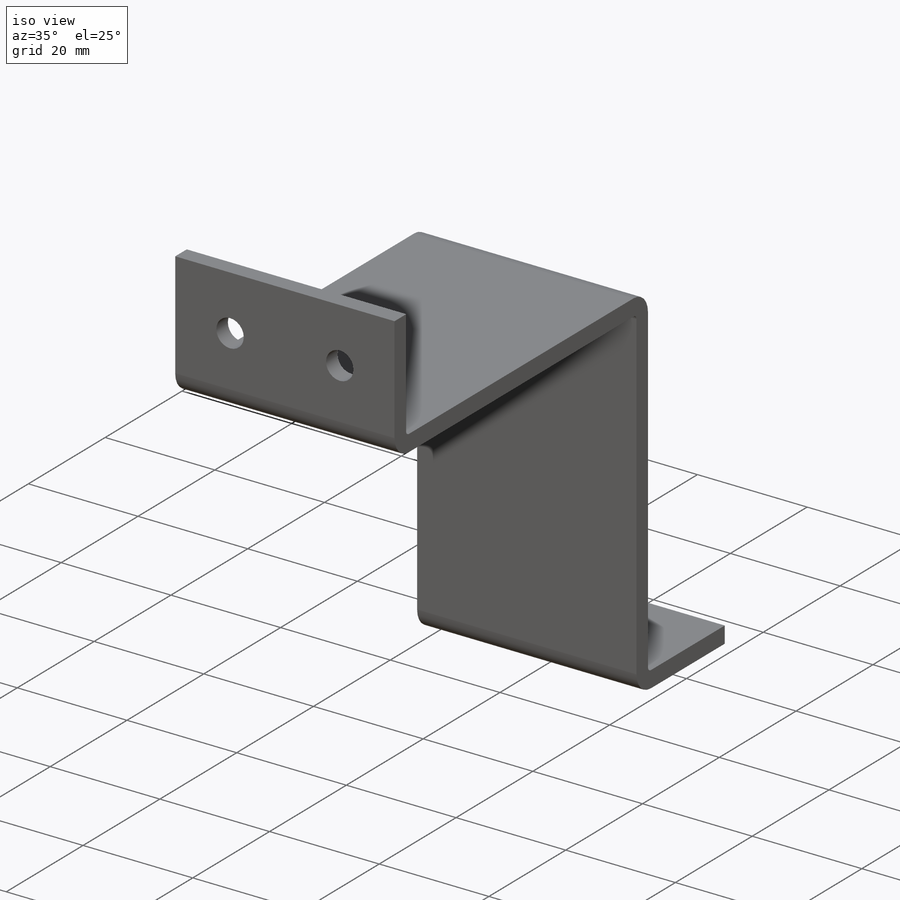
[diagram: iso view]
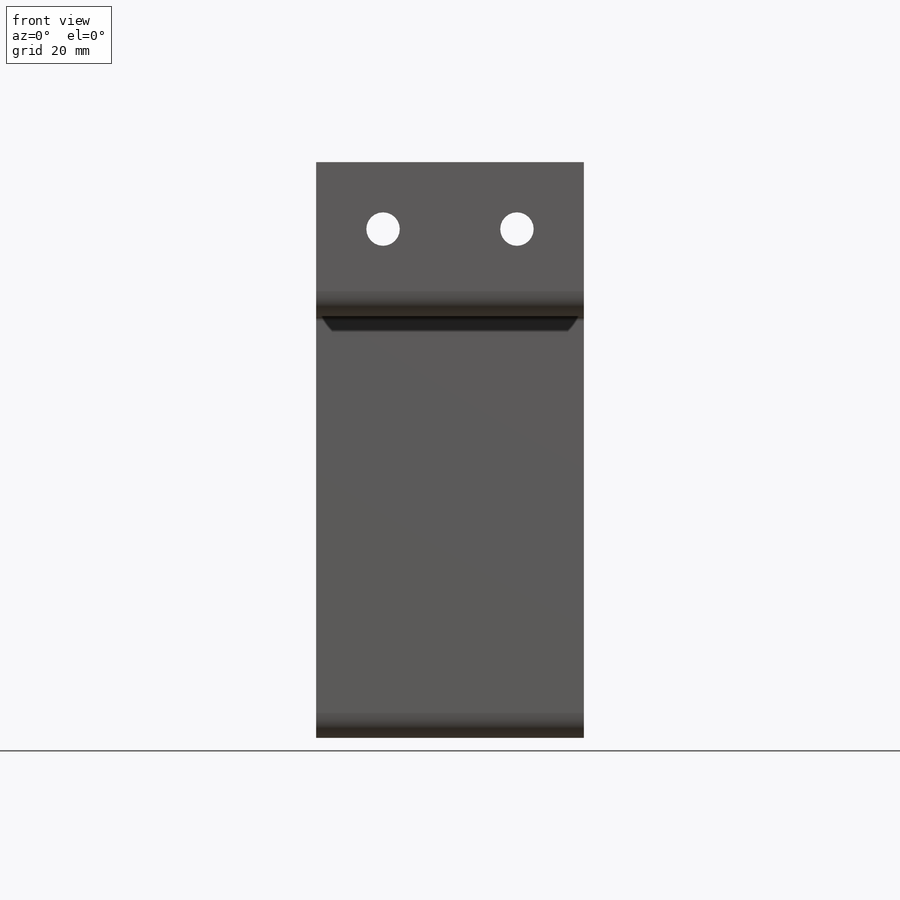
[diagram: front view]
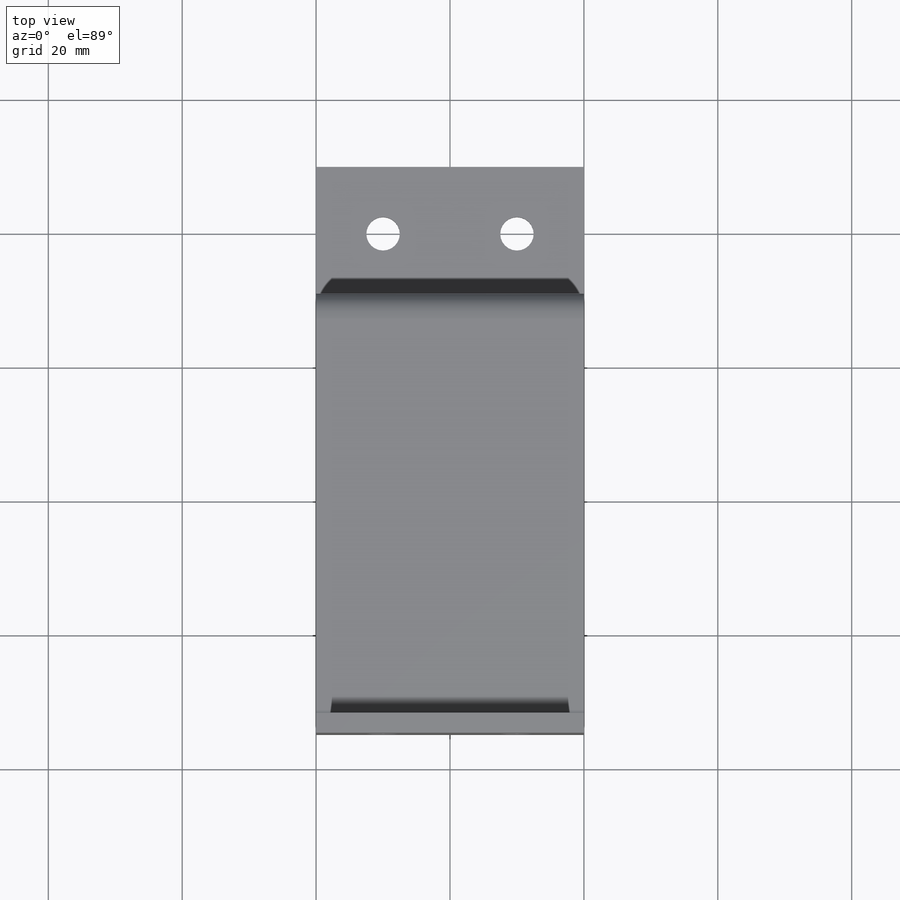
[diagram: top view]
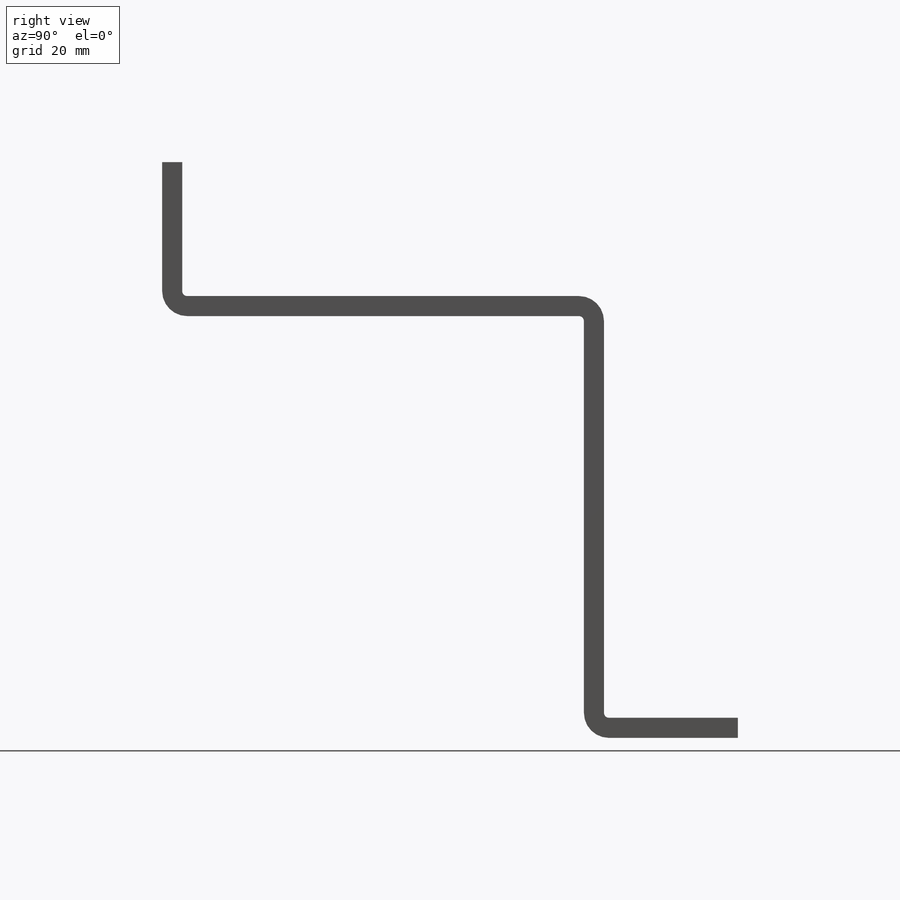
[diagram: right view]
SOLIDWORKS PART (.sldprt)
format: sldprt  version: not decoded by parser v0  size: 282,624 bytes
history: native  units: mm
features: sketch x9, sheet_metal_op x4, hole x2, material x1 + 3 further entries (+16 scaffold rows collapsed; 1 parser-record rows omitted)
feature tree (36):
  scaffold x16  (default folders/planes/origin — collapsed)
  material  "1060 Alloy"
  sketch  "Sketch1"  dims[c1.D1=~40.939294mm c2.D1=20.0mm c2.D2=40.0mm c2.D3=10.0mm c2.D4=20.0mm]
  sheet_metal_op  "Sheet-Metal1"  Thickness=3mm
  sheet_metal_op  "Base-Flange1"
  sketch  "Sketch5"  dims[c1.D1=0.7366mm c1.D4=90.0deg c1.D5=1.0 c1.D8=1.5mm c1.D9=1.5mm c2.D1=0.7366mm c2.D2=500.0mm c2.D3=0.0mm c2.D6=10.0mm c2.D7=60.0mm c2.Edge-Flange2=0.0]
  sketch  "Sketch8"
  sheet_metal_op  "EdgeBend2"  Edge-Flange3=0
  sketch  "Sketch11"
  sheet_metal_op  "EdgeBend3"
  hole  "Ø5.0 (5) Diameter Hole1"  Diameter=5mm Depth=11mm
  sketch  "Sketch13"  dims[D1=10.0mm D2=10.0mm D3=10.0mm D4=10.0mm]
  sketch  "Sketch12"  dims[hole-wizard template sketch: 50 standard entries collapsed; hole parameters above]
  hole  "Ø5.0 (5) Diameter Hole2"  Diameter=5mm Depth=11mm
  sketch  "Sketch15"  dims[D1=10.0mm D2=10.0mm D3=10.0mm D4=10.0mm]
  sketch  "Sketch14"  dims[hole-wizard template sketch: 50 standard entries collapsed; hole parameters above]
  "Flat-Pattern1"
  sketch  "Bend-Lines1"
  parser-record x1  (decoder bookkeeping rows leaked as tree rows — omitted from the tree; the rows remain in map.json)
  "Flatten-<EdgeBend2>1"
  "Flatten-<EdgeBend3>1"
decode coverage: 10 of 15 modeling features carry decoded parameters; 3 rows unclassified (native names shown)
note: ~ marks probable driven/reference dimensions
note: suppression state not decoded; provenance and decode notes live in map.json
